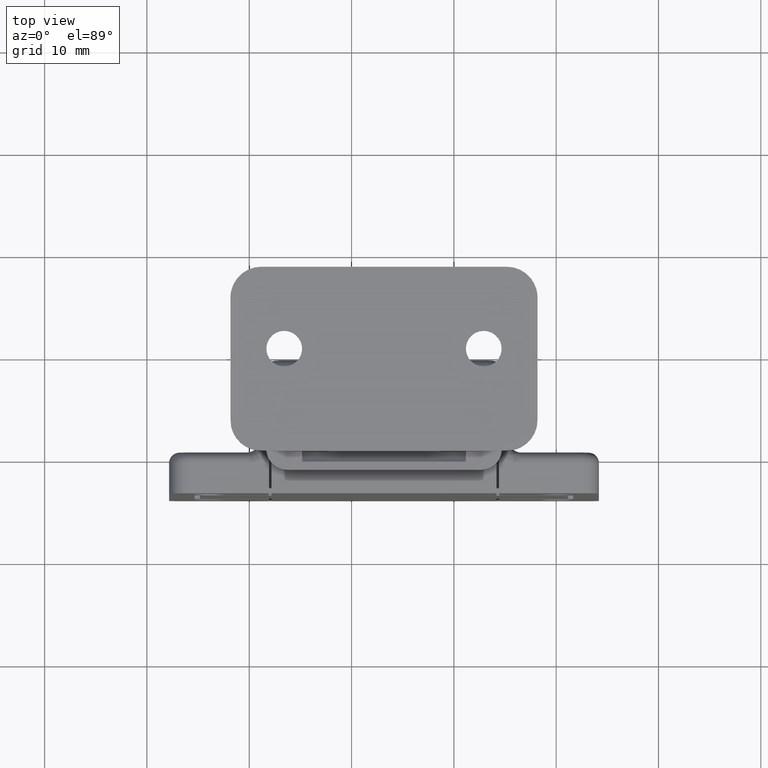
[diagram: clean part render]
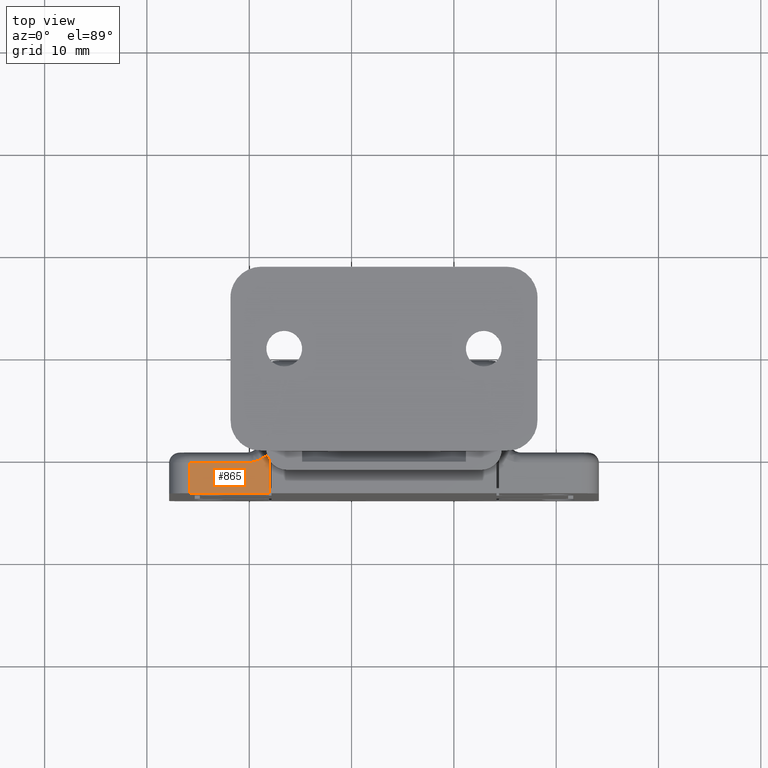
[diagram: same view with one face highlighted and labeled with its STEP entity id]
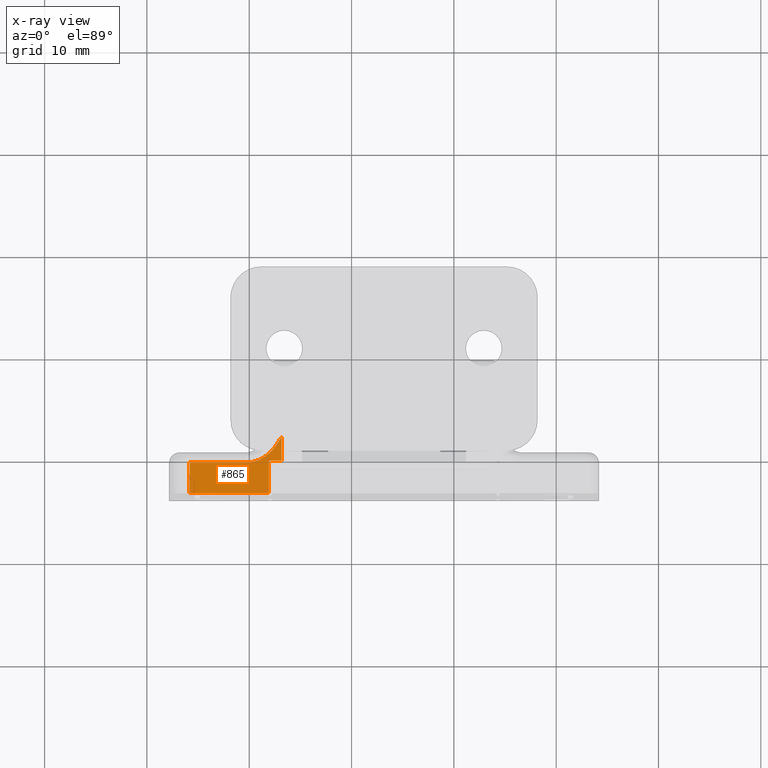
[diagram: x-ray of the same camera — body ghosted, the highlighted face saturated]
A machine part, top view. The second image highlights one B-rep face of the part: STEP entity #865.
The next image is the same camera in x-ray: the body ghosted, the highlighted face saturated — about 0% of this face is hidden behind the body in this view.
In plain terms, the highlighted planar face has unit normal (0, 0, -1).
Its self-contained STEP definition (entity closure, byte-faithful):
#168 = CARTESIAN_POINT ( 'NONE',  ( 11.24999999999999600, -44.99998499999991000, 3.199997000000000200 ) ) ;
#200 = VERTEX_POINT ( 'NONE', #1394 ) ;
#476 = VECTOR ( 'NONE', #3635, 1000.000000000000000 ) ;
#509 = CARTESIAN_POINT ( 'NONE',  ( -13.80124391342406500, -44.99998499999996700, 0.0000000000000000000 ) ) ;
#519 = EDGE_CURVE ( 'NONE', #1816, #4170, #3422, .T. ) ;
#624 = ORIENTED_EDGE ( 'NONE', *, *, #519, .T. ) ;
#774 = EDGE_CURVE ( 'NONE', #1921, #4194, #4054, .T. ) ;
#865 = ADVANCED_FACE ( 'NONE', ( #6611 ), #2783, .F. ) ;
#987 = CARTESIAN_POINT ( 'NONE',  ( 0.0000000000000000000, -44.99998499999996700, 0.0000000000000000000 ) ) ;
#1010 = DIRECTION ( 'NONE',  ( 0.0000000000000000000, 1.000000000000000000, 0.0000000000000000000 ) ) ;
#1038 = VECTOR ( 'NONE', #2721, 1000.000000000000000 ) ;
#1126 = CARTESIAN_POINT ( 'NONE',  ( -12.62985521485016300, -44.99998499999996000, 3.090099741861573900 ) ) ;
#1182 = CARTESIAN_POINT ( 'NONE',  ( -13.35410196624955700, -44.99998499999996700, 3.000000000000423200 ) ) ;
#1253 = DIRECTION ( 'NONE',  ( 1.000000000000000000, -0.0000000000000000000, -0.0000000000000000000 ) ) ;
#1266 = CARTESIAN_POINT ( 'NONE',  ( -10.19597862158947900, -44.99998499999997400, 5.190132141027474300 ) ) ;
#1282 = VECTOR ( 'NONE', #6090, 1000.000000000000000 ) ;
#1394 = CARTESIAN_POINT ( 'NONE',  ( -19.00000000000000400, -44.99998499999996700, 3.000000000000423200 ) ) ;
#1511 = CARTESIAN_POINT ( 'NONE',  ( -11.25000000000000000, -44.99998499999992400, 3.199997000000000200 ) ) ;
#1677 = ORIENTED_EDGE ( 'NONE', *, *, #6899, .T. ) ;
#1762 = ORIENTED_EDGE ( 'NONE', *, *, #3609, .F. ) ;
#1788 = CARTESIAN_POINT ( 'NONE',  ( -12.98772941994724100, -44.99998499999997400, 3.018621126367484000 ) ) ;
#1816 = VERTEX_POINT ( 'NONE', #3983 ) ;
#1831 = CARTESIAN_POINT ( 'NONE',  ( -12.45212985738319000, -44.99998499999996000, 3.143774216783182100 ) ) ;
#1908 = CARTESIAN_POINT ( 'NONE',  ( -13.16941875587997400, -44.99998499999996700, 3.000000000000423700 ) ) ;
#1921 = VERTEX_POINT ( 'NONE', #4697 ) ;
#1944 = CARTESIAN_POINT ( 'NONE',  ( -19.00000000000000400, -44.99998499999996700, 0.0000000000000000000 ) ) ;
#1968 = CARTESIAN_POINT ( 'NONE',  ( -11.63891321977527800, -44.99998499999996000, 3.556714749120831100 ) ) ;
#1973 = CARTESIAN_POINT ( 'NONE',  ( -19.00000000000000400, -44.99998499999996700, 3.000000000000423200 ) ) ;
#2151 = CARTESIAN_POINT ( 'NONE',  ( -11.25000000000000000, -44.99998499999989600, 0.0000000000000000000 ) ) ;
#2189 = EDGE_CURVE ( 'NONE', #4170, #200, #3652, .T. ) ;
#2358 = ORIENTED_EDGE ( 'NONE', *, *, #3768, .F. ) ;
#2486 = CARTESIAN_POINT ( 'NONE',  ( -11.95029540946803500, -44.99998499999997400, 3.363936035232478500 ) ) ;
#2694 = LINE ( 'NONE', #1944, #1282 ) ;
#2721 = DIRECTION ( 'NONE',  ( -0.0000000000000000000, 8.673617379884035500E-015, -1.000000000000000000 ) ) ;
#2783 = PLANE ( 'NONE',  #6188 ) ;
#2896 = VECTOR ( 'NONE', #5502, 1000.000000000000000 ) ;
#3031 = CARTESIAN_POINT ( 'NONE',  ( -10.00000000000000000, -44.99998499999996700, 10.50000000000000000 ) ) ;
#3036 = CARTESIAN_POINT ( 'NONE',  ( -10.00000000000000000, -44.99998499999996700, 3.199997000000000200 ) ) ;
#3422 = B_SPLINE_CURVE_WITH_KNOTS ( 'NONE', 3,
 ( #6042, #1266, #6087, #6481, #5918, #5600, #1968, #2486, #4416, #1831, #1126, #1788, #1908, #4724 ),
 .UNSPECIFIED., .F., .F.,
 ( 4, 2, 2, 2, 2, 2, 4 ),
 ( -9.999999999973532700E-006, 0.001089923357011312700, 0.002189846714022598900, 0.002739808392528240200, 0.003289770071033881900, 0.003839731749539523600, 0.004389693428045165400 ),
 .UNSPECIFIED. ) ;
#3609 = EDGE_CURVE ( 'NONE', #1816, #7568, #5248, .T. ) ;
#3635 = DIRECTION ( 'NONE',  ( 0.0000000000000000000, 0.0000000000000000000, -1.000000000000000000 ) ) ;
#3652 = LINE ( 'NONE', #1973, #5264 ) ;
#3768 = EDGE_CURVE ( 'NONE', #7568, #7365, #6582, .T. ) ;
#3774 = DIRECTION ( 'NONE',  ( -1.000000000000000000, 0.0000000000000000000, 0.0000000000000000000 ) ) ;
#3983 = CARTESIAN_POINT ( 'NONE',  ( -10.00000000000000000, -44.99998499999996700, 5.500000000000000000 ) ) ;
#4054 = LINE ( 'NONE', #509, #5432 ) ;
#4170 = VERTEX_POINT ( 'NONE', #1182 ) ;
#4194 = VERTEX_POINT ( 'NONE', #7109 ) ;
#4352 = ORIENTED_EDGE ( 'NONE', *, *, #2189, .T. ) ;
#4416 = CARTESIAN_POINT ( 'NONE',  ( -12.11266090482651900, -44.99998499999996700, 3.280796389216061600 ) ) ;
#4676 = EDGE_LOOP ( 'NONE', ( #1762, #624, #4352, #1677, #5311, #6452, #2358 ) ) ;
#4697 = CARTESIAN_POINT ( 'NONE',  ( -19.00000000000000400, -44.99998499999996700, 0.0000000000000000000 ) ) ;
#4724 = CARTESIAN_POINT ( 'NONE',  ( -13.35410196624955700, -44.99998499999996700, 3.000000000000423200 ) ) ;
#5248 = LINE ( 'NONE', #3031, #476 ) ;
#5264 = VECTOR ( 'NONE', #3774, 1000.000000000000000 ) ;
#5311 = ORIENTED_EDGE ( 'NONE', *, *, #774, .T. ) ;
#5432 = VECTOR ( 'NONE', #1253, 1000.000000000000000 ) ;
#5439 = EDGE_CURVE ( 'NONE', #7365, #4194, #7317, .T. ) ;
#5502 = DIRECTION ( 'NONE',  ( -1.000000000000000000, -0.0000000000000000000, -0.0000000000000000000 ) ) ;
#5600 = CARTESIAN_POINT ( 'NONE',  ( -11.49001660518620600, -44.99998499999995300, 3.666670445885698900 ) ) ;
#5661 = DIRECTION ( 'NONE',  ( 0.0000000000000000000, -0.0000000000000000000, 1.000000000000000000 ) ) ;
#5918 = CARTESIAN_POINT ( 'NONE',  ( -11.07422472772862700, -44.99998499999997400, 4.021104486997348500 ) ) ;
#6042 = CARTESIAN_POINT ( 'NONE',  ( -10.00000000000000000, -44.99998499999996700, 5.500000000000000000 ) ) ;
#6087 = CARTESIAN_POINT ( 'NONE',  ( -10.39235325399006600, -44.99998499999996000, 4.880119811054053800 ) ) ;
#6090 = DIRECTION ( 'NONE',  ( -0.0000000000000000000, -0.0000000000000000000, -1.000000000000000000 ) ) ;
#6188 = AXIS2_PLACEMENT_3D ( 'NONE', #987, #1010, #5661 ) ;
#6452 = ORIENTED_EDGE ( 'NONE', *, *, #5439, .F. ) ;
#6481 = CARTESIAN_POINT ( 'NONE',  ( -10.83281224784421700, -44.99998499999996700, 4.293694126383213600 ) ) ;
#6582 = LINE ( 'NONE', #168, #2896 ) ;
#6611 = FACE_OUTER_BOUND ( 'NONE', #4676, .T. ) ;
#6899 = EDGE_CURVE ( 'NONE', #200, #1921, #2694, .T. ) ;
#7109 = CARTESIAN_POINT ( 'NONE',  ( -11.25000000000000000, -44.99998499999989600, 0.0000000000000000000 ) ) ;
#7317 = LINE ( 'NONE', #2151, #1038 ) ;
#7365 = VERTEX_POINT ( 'NONE', #1511 ) ;
#7568 = VERTEX_POINT ( 'NONE', #3036 ) ;